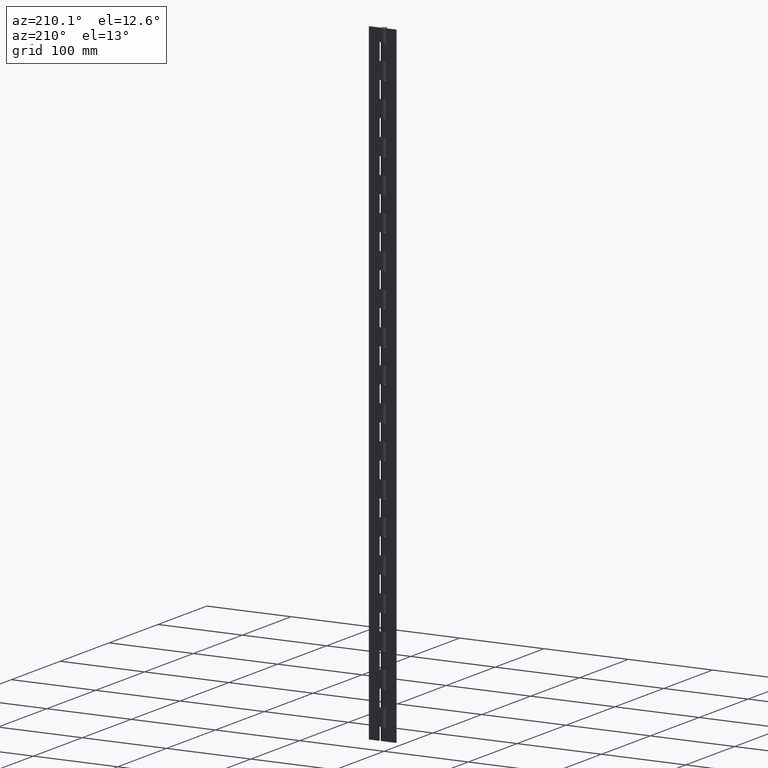
[diagram: clean part render]
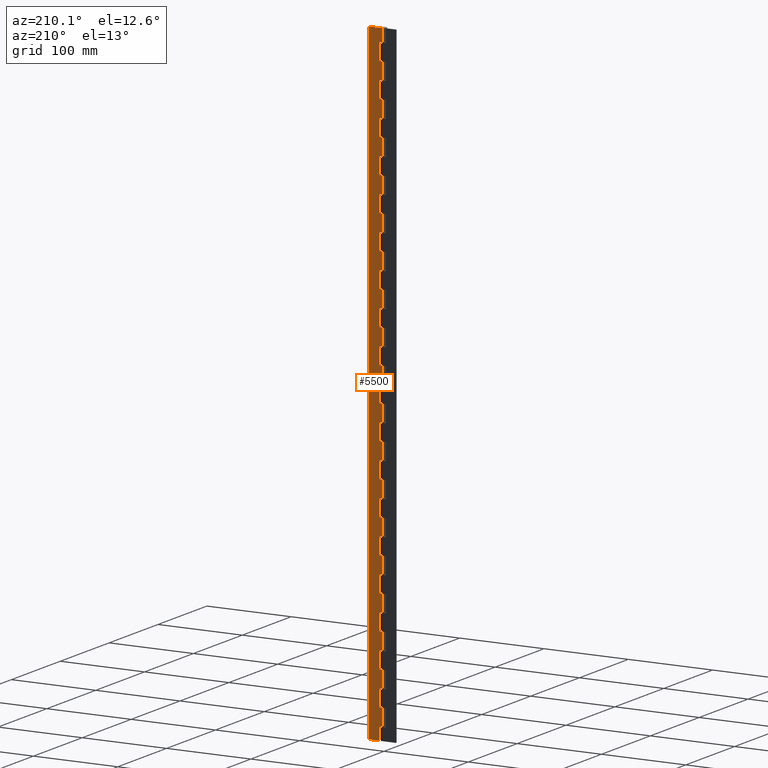
[diagram: same view with one face highlighted and labeled with its STEP entity id]
A machine part, auxiliary view. The second image highlights one B-rep face of the part: STEP entity #5500.
In plain terms, the highlighted face is a freeform B-spline surface patch.
Its self-contained STEP definition (entity closure, byte-faithful):
#302=CARTESIAN_POINT('',(4.0,3.249999999999865,15.000021999999850));
#303=VERTEX_POINT('',#302);
#309=CARTESIAN_POINT('',(4.0,3.249999999999885,0.0));
#310=VERTEX_POINT('',#309);
#311=CARTESIAN_POINT('',(4.0,3.249999999999885,0.0));
#312=CARTESIAN_POINT('',(4.0,3.249999999999865,15.000021999999850));
#313=QUASI_UNIFORM_CURVE('',1,(#311,#312),.UNSPECIFIED.,.F.,.U.);
#314=EDGE_CURVE('',#310,#303,#313,.T.);
#366=CARTESIAN_POINT('',(0.0,3.249999999999865,15.000021999999850));
#367=VERTEX_POINT('',#366);
#387=CARTESIAN_POINT('',(4.0,3.249999999999865,15.000021999999850));
#388=CARTESIAN_POINT('',(0.0,3.249999999999865,15.000021999999850));
#389=QUASI_UNIFORM_CURVE('',1,(#387,#388),.UNSPECIFIED.,.F.,.U.);
#390=EDGE_CURVE('',#303,#367,#389,.T.);
#408=CARTESIAN_POINT('',(4.0,3.249999999999865,55.000021999999802));
#409=VERTEX_POINT('',#408);
#415=CARTESIAN_POINT('',(4.0,3.249999999999865,35.000021999999952));
#416=VERTEX_POINT('',#415);
#417=CARTESIAN_POINT('',(4.0,3.249999999999865,35.000021999999952));
#418=CARTESIAN_POINT('',(4.0,3.249999999999865,55.000021999999802));
#419=QUASI_UNIFORM_CURVE('',1,(#417,#418),.UNSPECIFIED.,.F.,.U.);
#420=EDGE_CURVE('',#416,#409,#419,.T.);
#472=CARTESIAN_POINT('',(0.0,3.249999999999865,55.000021999999802));
#473=VERTEX_POINT('',#472);
#493=CARTESIAN_POINT('',(4.0,3.249999999999865,55.000021999999802));
#494=CARTESIAN_POINT('',(0.0,3.249999999999865,55.000021999999802));
#495=QUASI_UNIFORM_CURVE('',1,(#493,#494),.UNSPECIFIED.,.F.,.U.);
#496=EDGE_CURVE('',#409,#473,#495,.T.);
#513=CARTESIAN_POINT('',(0.0,3.249999999999865,35.000021999999952));
#514=VERTEX_POINT('',#513);
#515=CARTESIAN_POINT('',(0.0,3.249999999999865,35.000021999999952));
#516=CARTESIAN_POINT('',(4.0,3.249999999999865,35.000021999999952));
#517=QUASI_UNIFORM_CURVE('',1,(#515,#516),.UNSPECIFIED.,.F.,.U.);
#518=EDGE_CURVE('',#514,#416,#517,.T.);
#584=CARTESIAN_POINT('',(4.0,3.249999999999865,95.000021999999802));
#585=VERTEX_POINT('',#584);
#591=CARTESIAN_POINT('',(4.0,3.249999999999865,75.000022000000001));
#592=VERTEX_POINT('',#591);
#593=CARTESIAN_POINT('',(4.0,3.249999999999865,75.000022000000001));
#594=CARTESIAN_POINT('',(4.0,3.249999999999865,95.000021999999802));
#595=QUASI_UNIFORM_CURVE('',1,(#593,#594),.UNSPECIFIED.,.F.,.U.);
#596=EDGE_CURVE('',#592,#585,#595,.T.);
#648=CARTESIAN_POINT('',(0.0,3.249999999999865,95.000021999999802));
#649=VERTEX_POINT('',#648);
#669=CARTESIAN_POINT('',(4.0,3.249999999999865,95.000021999999802));
#670=CARTESIAN_POINT('',(0.0,3.249999999999865,95.000021999999802));
#671=QUASI_UNIFORM_CURVE('',1,(#669,#670),.UNSPECIFIED.,.F.,.U.);
#672=EDGE_CURVE('',#585,#649,#671,.T.);
#689=CARTESIAN_POINT('',(0.0,3.249999999999865,75.000022000000001));
#690=VERTEX_POINT('',#689);
#691=CARTESIAN_POINT('',(0.0,3.249999999999865,75.000022000000001));
#692=CARTESIAN_POINT('',(4.0,3.249999999999865,75.000022000000001));
#693=QUASI_UNIFORM_CURVE('',1,(#691,#692),.UNSPECIFIED.,.F.,.U.);
#694=EDGE_CURVE('',#690,#592,#693,.T.);
#760=CARTESIAN_POINT('',(4.0,3.249999999999865,135.000021999999800));
#761=VERTEX_POINT('',#760);
#767=CARTESIAN_POINT('',(4.0,3.249999999999865,115.000022000000000));
#768=VERTEX_POINT('',#767);
#769=CARTESIAN_POINT('',(4.0,3.249999999999865,115.000022000000000));
#770=CARTESIAN_POINT('',(4.0,3.249999999999865,135.000021999999800));
#771=QUASI_UNIFORM_CURVE('',1,(#769,#770),.UNSPECIFIED.,.F.,.U.);
#772=EDGE_CURVE('',#768,#761,#771,.T.);
#824=CARTESIAN_POINT('',(0.0,3.249999999999865,135.000021999999800));
#825=VERTEX_POINT('',#824);
#845=CARTESIAN_POINT('',(4.0,3.249999999999865,135.000021999999800));
#846=CARTESIAN_POINT('',(0.0,3.249999999999865,135.000021999999800));
#847=QUASI_UNIFORM_CURVE('',1,(#845,#846),.UNSPECIFIED.,.F.,.U.);
#848=EDGE_CURVE('',#761,#825,#847,.T.);
#865=CARTESIAN_POINT('',(0.0,3.249999999999865,115.000022000000000));
#866=VERTEX_POINT('',#865);
#867=CARTESIAN_POINT('',(0.0,3.249999999999865,115.000022000000000));
#868=CARTESIAN_POINT('',(4.0,3.249999999999865,115.000022000000000));
#869=QUASI_UNIFORM_CURVE('',1,(#867,#868),.UNSPECIFIED.,.F.,.U.);
#870=EDGE_CURVE('',#866,#768,#869,.T.);
#936=CARTESIAN_POINT('',(4.0,3.249999999999865,175.000022000000000));
#937=VERTEX_POINT('',#936);
#943=CARTESIAN_POINT('',(4.0,3.249999999999865,155.000022000000000));
#944=VERTEX_POINT('',#943);
#945=CARTESIAN_POINT('',(4.0,3.249999999999865,155.000022000000000));
#946=CARTESIAN_POINT('',(4.0,3.249999999999865,175.000022000000000));
#947=QUASI_UNIFORM_CURVE('',1,(#945,#946),.UNSPECIFIED.,.F.,.U.);
#948=EDGE_CURVE('',#944,#937,#947,.T.);
#1000=CARTESIAN_POINT('',(0.0,3.249999999999865,175.000022000000000));
#1001=VERTEX_POINT('',#1000);
#1021=CARTESIAN_POINT('',(4.0,3.249999999999865,175.000022000000000));
#1022=CARTESIAN_POINT('',(0.0,3.249999999999865,175.000022000000000));
#1023=QUASI_UNIFORM_CURVE('',1,(#1021,#1022),.UNSPECIFIED.,.F.,.U.);
#1024=EDGE_CURVE('',#937,#1001,#1023,.T.);
#1041=CARTESIAN_POINT('',(0.0,3.249999999999865,155.000022000000000));
#1042=VERTEX_POINT('',#1041);
#1043=CARTESIAN_POINT('',(0.0,3.249999999999865,155.000022000000000));
#1044=CARTESIAN_POINT('',(4.0,3.249999999999865,155.000022000000000));
#1045=QUASI_UNIFORM_CURVE('',1,(#1043,#1044),.UNSPECIFIED.,.F.,.U.);
#1046=EDGE_CURVE('',#1042,#944,#1045,.T.);
#1112=CARTESIAN_POINT('',(4.0,3.249999999999865,215.000022000000000));
#1113=VERTEX_POINT('',#1112);
#1119=CARTESIAN_POINT('',(4.0,3.249999999999865,195.000022000000000));
#1120=VERTEX_POINT('',#1119);
#1121=CARTESIAN_POINT('',(4.0,3.249999999999865,195.000022000000000));
#1122=CARTESIAN_POINT('',(4.0,3.249999999999865,215.000022000000000));
#1123=QUASI_UNIFORM_CURVE('',1,(#1121,#1122),.UNSPECIFIED.,.F.,.U.);
#1124=EDGE_CURVE('',#1120,#1113,#1123,.T.);
#1176=CARTESIAN_POINT('',(0.0,3.249999999999865,215.000022000000000));
#1177=VERTEX_POINT('',#1176);
#1197=CARTESIAN_POINT('',(4.0,3.249999999999865,215.000022000000000));
#1198=CARTESIAN_POINT('',(0.0,3.249999999999865,215.000022000000000));
#1199=QUASI_UNIFORM_CURVE('',1,(#1197,#1198),.UNSPECIFIED.,.F.,.U.);
#1200=EDGE_CURVE('',#1113,#1177,#1199,.T.);
#1217=CARTESIAN_POINT('',(0.0,3.249999999999865,195.000022000000000));
#1218=VERTEX_POINT('',#1217);
#1219=CARTESIAN_POINT('',(0.0,3.249999999999865,195.000022000000000));
#1220=CARTESIAN_POINT('',(4.0,3.249999999999865,195.000022000000000));
#1221=QUASI_UNIFORM_CURVE('',1,(#1219,#1220),.UNSPECIFIED.,.F.,.U.);
#1222=EDGE_CURVE('',#1218,#1120,#1221,.T.);
#1288=CARTESIAN_POINT('',(4.0,3.249999999999865,255.000022000000000));
#1289=VERTEX_POINT('',#1288);
#1295=CARTESIAN_POINT('',(4.0,3.249999999999865,235.000022000000000));
#1296=VERTEX_POINT('',#1295);
#1297=CARTESIAN_POINT('',(4.0,3.249999999999865,235.000022000000000));
#1298=CARTESIAN_POINT('',(4.0,3.249999999999865,255.000022000000000));
#1299=QUASI_UNIFORM_CURVE('',1,(#1297,#1298),.UNSPECIFIED.,.F.,.U.);
#1300=EDGE_CURVE('',#1296,#1289,#1299,.T.);
#1352=CARTESIAN_POINT('',(0.0,3.249999999999865,255.000022000000000));
#1353=VERTEX_POINT('',#1352);
#1373=CARTESIAN_POINT('',(4.0,3.249999999999865,255.000022000000000));
#1374=CARTESIAN_POINT('',(0.0,3.249999999999865,255.000022000000000));
#1375=QUASI_UNIFORM_CURVE('',1,(#1373,#1374),.UNSPECIFIED.,.F.,.U.);
#1376=EDGE_CURVE('',#1289,#1353,#1375,.T.);
#1393=CARTESIAN_POINT('',(0.0,3.249999999999865,235.000022000000000));
#1394=VERTEX_POINT('',#1393);
#1395=CARTESIAN_POINT('',(0.0,3.249999999999865,235.000022000000000));
#1396=CARTESIAN_POINT('',(4.0,3.249999999999865,235.000022000000000));
#1397=QUASI_UNIFORM_CURVE('',1,(#1395,#1396),.UNSPECIFIED.,.F.,.U.);
#1398=EDGE_CURVE('',#1394,#1296,#1397,.T.);
#1464=CARTESIAN_POINT('',(4.0,3.249999999999865,295.000021999999890));
#1465=VERTEX_POINT('',#1464);
#1471=CARTESIAN_POINT('',(4.0,3.249999999999865,275.000022000000000));
#1472=VERTEX_POINT('',#1471);
#1473=CARTESIAN_POINT('',(4.0,3.249999999999865,275.000022000000000));
#1474=CARTESIAN_POINT('',(4.0,3.249999999999865,295.000021999999890));
#1475=QUASI_UNIFORM_CURVE('',1,(#1473,#1474),.UNSPECIFIED.,.F.,.U.);
#1476=EDGE_CURVE('',#1472,#1465,#1475,.T.);
#1528=CARTESIAN_POINT('',(0.0,3.249999999999865,295.000021999999890));
#1529=VERTEX_POINT('',#1528);
#1549=CARTESIAN_POINT('',(4.0,3.249999999999865,295.000021999999890));
#1550=CARTESIAN_POINT('',(0.0,3.249999999999865,295.000021999999890));
#1551=QUASI_UNIFORM_CURVE('',1,(#1549,#1550),.UNSPECIFIED.,.F.,.U.);
#1552=EDGE_CURVE('',#1465,#1529,#1551,.T.);
#1569=CARTESIAN_POINT('',(0.0,3.249999999999865,275.000022000000000));
#1570=VERTEX_POINT('',#1569);
#1571=CARTESIAN_POINT('',(0.0,3.249999999999865,275.000022000000000));
#1572=CARTESIAN_POINT('',(4.0,3.249999999999865,275.000022000000000));
#1573=QUASI_UNIFORM_CURVE('',1,(#1571,#1572),.UNSPECIFIED.,.F.,.U.);
#1574=EDGE_CURVE('',#1570,#1472,#1573,.T.);
#1640=CARTESIAN_POINT('',(4.0,3.249999999999865,335.000022000000000));
#1641=VERTEX_POINT('',#1640);
#1647=CARTESIAN_POINT('',(4.0,3.249999999999865,315.000022000000000));
#1648=VERTEX_POINT('',#1647);
#1649=CARTESIAN_POINT('',(4.0,3.249999999999865,315.000022000000000));
#1650=CARTESIAN_POINT('',(4.0,3.249999999999865,335.000022000000000));
#1651=QUASI_UNIFORM_CURVE('',1,(#1649,#1650),.UNSPECIFIED.,.F.,.U.);
#1652=EDGE_CURVE('',#1648,#1641,#1651,.T.);
#1704=CARTESIAN_POINT('',(0.0,3.249999999999865,335.000022000000000));
#1705=VERTEX_POINT('',#1704);
#1725=CARTESIAN_POINT('',(4.0,3.249999999999865,335.000022000000000));
#1726=CARTESIAN_POINT('',(0.0,3.249999999999865,335.000022000000000));
#1727=QUASI_UNIFORM_CURVE('',1,(#1725,#1726),.UNSPECIFIED.,.F.,.U.);
#1728=EDGE_CURVE('',#1641,#1705,#1727,.T.);
#1745=CARTESIAN_POINT('',(0.0,3.249999999999865,315.000022000000000));
#1746=VERTEX_POINT('',#1745);
#1747=CARTESIAN_POINT('',(0.0,3.249999999999865,315.000022000000000));
#1748=CARTESIAN_POINT('',(4.0,3.249999999999865,315.000022000000000));
#1749=QUASI_UNIFORM_CURVE('',1,(#1747,#1748),.UNSPECIFIED.,.F.,.U.);
#1750=EDGE_CURVE('',#1746,#1648,#1749,.T.);
#1816=CARTESIAN_POINT('',(4.0,3.249999999999865,375.000022000000000));
#1817=VERTEX_POINT('',#1816);
#1823=CARTESIAN_POINT('',(4.0,3.249999999999865,355.000022000000000));
#1824=VERTEX_POINT('',#1823);
#1825=CARTESIAN_POINT('',(4.0,3.249999999999865,355.000022000000000));
#1826=CARTESIAN_POINT('',(4.0,3.249999999999865,375.000022000000000));
#1827=QUASI_UNIFORM_CURVE('',1,(#1825,#1826),.UNSPECIFIED.,.F.,.U.);
#1828=EDGE_CURVE('',#1824,#1817,#1827,.T.);
#1880=CARTESIAN_POINT('',(0.0,3.249999999999865,375.000022000000000));
#1881=VERTEX_POINT('',#1880);
#1901=CARTESIAN_POINT('',(4.0,3.249999999999865,375.000022000000000));
#1902=CARTESIAN_POINT('',(0.0,3.249999999999865,375.000022000000000));
#1903=QUASI_UNIFORM_CURVE('',1,(#1901,#1902),.UNSPECIFIED.,.F.,.U.);
#1904=EDGE_CURVE('',#1817,#1881,#1903,.T.);
#1921=CARTESIAN_POINT('',(0.0,3.249999999999865,355.000022000000000));
#1922=VERTEX_POINT('',#1921);
#1923=CARTESIAN_POINT('',(0.0,3.249999999999865,355.000022000000000));
#1924=CARTESIAN_POINT('',(4.0,3.249999999999865,355.000022000000000));
#1925=QUASI_UNIFORM_CURVE('',1,(#1923,#1924),.UNSPECIFIED.,.F.,.U.);
#1926=EDGE_CURVE('',#1922,#1824,#1925,.T.);
#1992=CARTESIAN_POINT('',(4.0,3.249999999999865,415.000022000000000));
#1993=VERTEX_POINT('',#1992);
#1999=CARTESIAN_POINT('',(4.0,3.249999999999865,395.000022000000000));
#2000=VERTEX_POINT('',#1999);
#2001=CARTESIAN_POINT('',(4.0,3.249999999999865,395.000022000000000));
#2002=CARTESIAN_POINT('',(4.0,3.249999999999865,415.000022000000000));
#2003=QUASI_UNIFORM_CURVE('',1,(#2001,#2002),.UNSPECIFIED.,.F.,.U.);
#2004=EDGE_CURVE('',#2000,#1993,#2003,.T.);
#2056=CARTESIAN_POINT('',(0.0,3.249999999999865,415.000022000000000));
#2057=VERTEX_POINT('',#2056);
#2077=CARTESIAN_POINT('',(4.0,3.249999999999865,415.000022000000000));
#2078=CARTESIAN_POINT('',(0.0,3.249999999999865,415.000022000000000));
#2079=QUASI_UNIFORM_CURVE('',1,(#2077,#2078),.UNSPECIFIED.,.F.,.U.);
#2080=EDGE_CURVE('',#1993,#2057,#2079,.T.);
#2097=CARTESIAN_POINT('',(0.0,3.249999999999865,395.000022000000000));
#2098=VERTEX_POINT('',#2097);
#2099=CARTESIAN_POINT('',(0.0,3.249999999999865,395.000022000000000));
#2100=CARTESIAN_POINT('',(4.0,3.249999999999865,395.000022000000000));
#2101=QUASI_UNIFORM_CURVE('',1,(#2099,#2100),.UNSPECIFIED.,.F.,.U.);
#2102=EDGE_CURVE('',#2098,#2000,#2101,.T.);
#2168=CARTESIAN_POINT('',(4.0,3.249999999999865,455.000022000000000));
#2169=VERTEX_POINT('',#2168);
#2175=CARTESIAN_POINT('',(4.0,3.249999999999865,435.000022000000000));
#2176=VERTEX_POINT('',#2175);
#2177=CARTESIAN_POINT('',(4.0,3.249999999999865,435.000022000000000));
#2178=CARTESIAN_POINT('',(4.0,3.249999999999865,455.000022000000000));
#2179=QUASI_UNIFORM_CURVE('',1,(#2177,#2178),.UNSPECIFIED.,.F.,.U.);
#2180=EDGE_CURVE('',#2176,#2169,#2179,.T.);
#2232=CARTESIAN_POINT('',(0.0,3.249999999999865,455.000022000000000));
#2233=VERTEX_POINT('',#2232);
#2253=CARTESIAN_POINT('',(4.0,3.249999999999865,455.000022000000000));
#2254=CARTESIAN_POINT('',(0.0,3.249999999999865,455.000022000000000));
#2255=QUASI_UNIFORM_CURVE('',1,(#2253,#2254),.UNSPECIFIED.,.F.,.U.);
#2256=EDGE_CURVE('',#2169,#2233,#2255,.T.);
#2273=CARTESIAN_POINT('',(0.0,3.249999999999865,435.000022000000000));
#2274=VERTEX_POINT('',#2273);
#2275=CARTESIAN_POINT('',(0.0,3.249999999999865,435.000022000000000));
#2276=CARTESIAN_POINT('',(4.0,3.249999999999865,435.000022000000000));
#2277=QUASI_UNIFORM_CURVE('',1,(#2275,#2276),.UNSPECIFIED.,.F.,.U.);
#2278=EDGE_CURVE('',#2274,#2176,#2277,.T.);
#2344=CARTESIAN_POINT('',(4.0,3.249999999999865,495.000022000000000));
#2345=VERTEX_POINT('',#2344);
#2351=CARTESIAN_POINT('',(4.0,3.249999999999865,475.000022000000000));
#2352=VERTEX_POINT('',#2351);
#2353=CARTESIAN_POINT('',(4.0,3.249999999999865,475.000022000000000));
#2354=CARTESIAN_POINT('',(4.0,3.249999999999865,495.000022000000000));
#2355=QUASI_UNIFORM_CURVE('',1,(#2353,#2354),.UNSPECIFIED.,.F.,.U.);
#2356=EDGE_CURVE('',#2352,#2345,#2355,.T.);
#2408=CARTESIAN_POINT('',(0.0,3.249999999999865,495.000022000000000));
#2409=VERTEX_POINT('',#2408);
#2429=CARTESIAN_POINT('',(4.0,3.249999999999865,495.000022000000000));
#2430=CARTESIAN_POINT('',(0.0,3.249999999999865,495.000022000000000));
#2431=QUASI_UNIFORM_CURVE('',1,(#2429,#2430),.UNSPECIFIED.,.F.,.U.);
#2432=EDGE_CURVE('',#2345,#2409,#2431,.T.);
#2449=CARTESIAN_POINT('',(0.0,3.249999999999865,475.000022000000000));
#2450=VERTEX_POINT('',#2449);
#2451=CARTESIAN_POINT('',(0.0,3.249999999999865,475.000022000000000));
#2452=CARTESIAN_POINT('',(4.0,3.249999999999865,475.000022000000000));
#2453=QUASI_UNIFORM_CURVE('',1,(#2451,#2452),.UNSPECIFIED.,.F.,.U.);
#2454=EDGE_CURVE('',#2450,#2352,#2453,.T.);
#2520=CARTESIAN_POINT('',(4.0,3.249999999999865,535.000021999999940));
#2521=VERTEX_POINT('',#2520);
#2527=CARTESIAN_POINT('',(4.0,3.249999999999865,515.000021999999940));
#2528=VERTEX_POINT('',#2527);
#2529=CARTESIAN_POINT('',(4.0,3.249999999999865,515.000021999999940));
#2530=CARTESIAN_POINT('',(4.0,3.249999999999865,535.000021999999940));
#2531=QUASI_UNIFORM_CURVE('',1,(#2529,#2530),.UNSPECIFIED.,.F.,.U.);
#2532=EDGE_CURVE('',#2528,#2521,#2531,.T.);
#2584=CARTESIAN_POINT('',(0.0,3.249999999999865,535.000021999999940));
#2585=VERTEX_POINT('',#2584);
#2605=CARTESIAN_POINT('',(4.0,3.249999999999865,535.000021999999940));
#2606=CARTESIAN_POINT('',(0.0,3.249999999999865,535.000021999999940));
#2607=QUASI_UNIFORM_CURVE('',1,(#2605,#2606),.UNSPECIFIED.,.F.,.U.);
#2608=EDGE_CURVE('',#2521,#2585,#2607,.T.);
#2625=CARTESIAN_POINT('',(0.0,3.249999999999865,515.000021999999940));
#2626=VERTEX_POINT('',#2625);
#2627=CARTESIAN_POINT('',(0.0,3.249999999999865,515.000021999999940));
#2628=CARTESIAN_POINT('',(4.0,3.249999999999865,515.000021999999940));
#2629=QUASI_UNIFORM_CURVE('',1,(#2627,#2628),.UNSPECIFIED.,.F.,.U.);
#2630=EDGE_CURVE('',#2626,#2528,#2629,.T.);
#2696=CARTESIAN_POINT('',(4.0,3.249999999999865,575.000021999999940));
#2697=VERTEX_POINT('',#2696);
#2703=CARTESIAN_POINT('',(4.0,3.249999999999865,555.000021999999940));
#2704=VERTEX_POINT('',#2703);
#2705=CARTESIAN_POINT('',(4.0,3.249999999999865,555.000021999999940));
#2706=CARTESIAN_POINT('',(4.0,3.249999999999865,575.000021999999940));
#2707=QUASI_UNIFORM_CURVE('',1,(#2705,#2706),.UNSPECIFIED.,.F.,.U.);
#2708=EDGE_CURVE('',#2704,#2697,#2707,.T.);
#2760=CARTESIAN_POINT('',(0.0,3.249999999999865,575.000021999999940));
#2761=VERTEX_POINT('',#2760);
#2781=CARTESIAN_POINT('',(4.0,3.249999999999865,575.000021999999940));
#2782=CARTESIAN_POINT('',(0.0,3.249999999999865,575.000021999999940));
#2783=QUASI_UNIFORM_CURVE('',1,(#2781,#2782),.UNSPECIFIED.,.F.,.U.);
#2784=EDGE_CURVE('',#2697,#2761,#2783,.T.);
#2801=CARTESIAN_POINT('',(0.0,3.249999999999865,555.000021999999940));
#2802=VERTEX_POINT('',#2801);
#2803=CARTESIAN_POINT('',(0.0,3.249999999999865,555.000021999999940));
#2804=CARTESIAN_POINT('',(4.0,3.249999999999865,555.000021999999940));
#2805=QUASI_UNIFORM_CURVE('',1,(#2803,#2804),.UNSPECIFIED.,.F.,.U.);
#2806=EDGE_CURVE('',#2802,#2704,#2805,.T.);
#2872=CARTESIAN_POINT('',(4.0,3.249999999999865,615.000022000000060));
#2873=VERTEX_POINT('',#2872);
#2879=CARTESIAN_POINT('',(4.0,3.249999999999865,595.000022000000060));
#2880=VERTEX_POINT('',#2879);
#2881=CARTESIAN_POINT('',(4.0,3.249999999999865,595.000022000000060));
#2882=CARTESIAN_POINT('',(4.0,3.249999999999865,615.000022000000060));
#2883=QUASI_UNIFORM_CURVE('',1,(#2881,#2882),.UNSPECIFIED.,.F.,.U.);
#2884=EDGE_CURVE('',#2880,#2873,#2883,.T.);
#2936=CARTESIAN_POINT('',(0.0,3.249999999999865,615.000022000000060));
#2937=VERTEX_POINT('',#2936);
#2957=CARTESIAN_POINT('',(4.0,3.249999999999865,615.000022000000060));
#2958=CARTESIAN_POINT('',(0.0,3.249999999999865,615.000022000000060));
#2959=QUASI_UNIFORM_CURVE('',1,(#2957,#2958),.UNSPECIFIED.,.F.,.U.);
#2960=EDGE_CURVE('',#2873,#2937,#2959,.T.);
#2977=CARTESIAN_POINT('',(0.0,3.249999999999865,595.000022000000060));
#2978=VERTEX_POINT('',#2977);
#2979=CARTESIAN_POINT('',(0.0,3.249999999999865,595.000022000000060));
#2980=CARTESIAN_POINT('',(4.0,3.249999999999865,595.000022000000060));
#2981=QUASI_UNIFORM_CURVE('',1,(#2979,#2980),.UNSPECIFIED.,.F.,.U.);
#2982=EDGE_CURVE('',#2978,#2880,#2981,.T.);
#3048=CARTESIAN_POINT('',(4.0,3.249999999999865,655.000021999999940));
#3049=VERTEX_POINT('',#3048);
#3055=CARTESIAN_POINT('',(4.0,3.249999999999865,635.000022000000060));
#3056=VERTEX_POINT('',#3055);
#3057=CARTESIAN_POINT('',(4.0,3.249999999999865,635.000022000000060));
#3058=CARTESIAN_POINT('',(4.0,3.249999999999865,655.000021999999940));
#3059=QUASI_UNIFORM_CURVE('',1,(#3057,#3058),.UNSPECIFIED.,.F.,.U.);
#3060=EDGE_CURVE('',#3056,#3049,#3059,.T.);
#3112=CARTESIAN_POINT('',(0.0,3.249999999999865,655.000021999999940));
#3113=VERTEX_POINT('',#3112);
#3133=CARTESIAN_POINT('',(4.0,3.249999999999865,655.000021999999940));
#3134=CARTESIAN_POINT('',(0.0,3.249999999999865,655.000021999999940));
#3135=QUASI_UNIFORM_CURVE('',1,(#3133,#3134),.UNSPECIFIED.,.F.,.U.);
#3136=EDGE_CURVE('',#3049,#3113,#3135,.T.);
#3153=CARTESIAN_POINT('',(0.0,3.249999999999865,635.000022000000060));
#3154=VERTEX_POINT('',#3153);
#3155=CARTESIAN_POINT('',(0.0,3.249999999999865,635.000022000000060));
#3156=CARTESIAN_POINT('',(4.0,3.249999999999865,635.000022000000060));
#3157=QUASI_UNIFORM_CURVE('',1,(#3155,#3156),.UNSPECIFIED.,.F.,.U.);
#3158=EDGE_CURVE('',#3154,#3056,#3157,.T.);
#3224=CARTESIAN_POINT('',(4.0,3.249999999999865,695.000021999999940));
#3225=VERTEX_POINT('',#3224);
#3231=CARTESIAN_POINT('',(4.0,3.249999999999865,675.000021999999940));
#3232=VERTEX_POINT('',#3231);
#3233=CARTESIAN_POINT('',(4.0,3.249999999999865,675.000021999999940));
#3234=CARTESIAN_POINT('',(4.0,3.249999999999865,695.000021999999940));
#3235=QUASI_UNIFORM_CURVE('',1,(#3233,#3234),.UNSPECIFIED.,.F.,.U.);
#3236=EDGE_CURVE('',#3232,#3225,#3235,.T.);
#3288=CARTESIAN_POINT('',(0.0,3.249999999999865,695.000021999999940));
#3289=VERTEX_POINT('',#3288);
#3309=CARTESIAN_POINT('',(4.0,3.249999999999865,695.000021999999940));
#3310=CARTESIAN_POINT('',(0.0,3.249999999999865,695.000021999999940));
#3311=QUASI_UNIFORM_CURVE('',1,(#3309,#3310),.UNSPECIFIED.,.F.,.U.);
#3312=EDGE_CURVE('',#3225,#3289,#3311,.T.);
#3329=CARTESIAN_POINT('',(0.0,3.249999999999865,675.000021999999940));
#3330=VERTEX_POINT('',#3329);
#3331=CARTESIAN_POINT('',(0.0,3.249999999999865,675.000021999999940));
#3332=CARTESIAN_POINT('',(4.0,3.249999999999865,675.000021999999940));
#3333=QUASI_UNIFORM_CURVE('',1,(#3331,#3332),.UNSPECIFIED.,.F.,.U.);
#3334=EDGE_CURVE('',#3330,#3232,#3333,.T.);
#3400=CARTESIAN_POINT('',(4.0,3.249999999999865,735.000022000000060));
#3401=VERTEX_POINT('',#3400);
#3407=CARTESIAN_POINT('',(4.0,3.249999999999865,715.000022000000060));
#3408=VERTEX_POINT('',#3407);
#3409=CARTESIAN_POINT('',(4.0,3.249999999999865,715.000022000000060));
#3410=CARTESIAN_POINT('',(4.0,3.249999999999865,735.000022000000060));
#3411=QUASI_UNIFORM_CURVE('',1,(#3409,#3410),.UNSPECIFIED.,.F.,.U.);
#3412=EDGE_CURVE('',#3408,#3401,#3411,.T.);
#3464=CARTESIAN_POINT('',(0.0,3.249999999999865,735.000022000000060));
#3465=VERTEX_POINT('',#3464);
#3485=CARTESIAN_POINT('',(4.0,3.249999999999865,735.000022000000060));
#3486=CARTESIAN_POINT('',(0.0,3.249999999999865,735.000022000000060));
#3487=QUASI_UNIFORM_CURVE('',1,(#3485,#3486),.UNSPECIFIED.,.F.,.U.);
#3488=EDGE_CURVE('',#3401,#3465,#3487,.T.);
#3505=CARTESIAN_POINT('',(0.0,3.249999999999865,715.000022000000060));
#3506=VERTEX_POINT('',#3505);
#3507=CARTESIAN_POINT('',(0.0,3.249999999999865,715.000022000000060));
#3508=CARTESIAN_POINT('',(4.0,3.249999999999865,715.000022000000060));
#3509=QUASI_UNIFORM_CURVE('',1,(#3507,#3508),.UNSPECIFIED.,.F.,.U.);
#3510=EDGE_CURVE('',#3506,#3408,#3509,.T.);
#3574=CARTESIAN_POINT('',(-5.969956E-016,3.250000000000000,750.000022000000060));
#3575=VERTEX_POINT('',#3574);
#3576=CARTESIAN_POINT('',(16.0,3.249999999999885,750.000022000000060));
#3577=VERTEX_POINT('',#3576);
#3578=CARTESIAN_POINT('',(-5.969956E-016,3.250000000000000,750.000022000000060));
#3579=CARTESIAN_POINT('',(16.0,3.249999999999885,750.000022000000060));
#3580=QUASI_UNIFORM_CURVE('',1,(#3578,#3579),.UNSPECIFIED.,.F.,.U.);
#3581=EDGE_CURVE('',#3575,#3577,#3580,.T.);
#3652=CARTESIAN_POINT('',(16.0,3.249999999999885,0.0));
#3653=VERTEX_POINT('',#3652);
#3661=CARTESIAN_POINT('',(16.0,3.249999999999885,750.000022000000060));
#3662=CARTESIAN_POINT('',(16.0,3.249999999999885,0.0));
#3663=QUASI_UNIFORM_CURVE('',1,(#3661,#3662),.UNSPECIFIED.,.F.,.U.);
#3664=EDGE_CURVE('',#3577,#3653,#3663,.T.);
#3704=CARTESIAN_POINT('',(-5.969956E-016,3.250000000000000,750.000022000000060));
#3705=CARTESIAN_POINT('',(0.0,3.249999999999865,735.000022000000060));
#3706=QUASI_UNIFORM_CURVE('',1,(#3704,#3705),.UNSPECIFIED.,.F.,.U.);
#3707=EDGE_CURVE('',#3575,#3465,#3706,.T.);
#3790=CARTESIAN_POINT('',(0.0,3.249999999999865,715.000022000000060));
#3791=CARTESIAN_POINT('',(0.0,3.249999999999865,695.000021999999940));
#3792=QUASI_UNIFORM_CURVE('',1,(#3790,#3791),.UNSPECIFIED.,.F.,.U.);
#3793=EDGE_CURVE('',#3506,#3289,#3792,.T.);
#3876=CARTESIAN_POINT('',(0.0,3.249999999999865,675.000021999999940));
#3877=CARTESIAN_POINT('',(0.0,3.249999999999865,655.000021999999940));
#3878=QUASI_UNIFORM_CURVE('',1,(#3876,#3877),.UNSPECIFIED.,.F.,.U.);
#3879=EDGE_CURVE('',#3330,#3113,#3878,.T.);
#3962=CARTESIAN_POINT('',(0.0,3.249999999999865,635.000022000000060));
#3963=CARTESIAN_POINT('',(0.0,3.249999999999865,615.000022000000060));
#3964=QUASI_UNIFORM_CURVE('',1,(#3962,#3963),.UNSPECIFIED.,.F.,.U.);
#3965=EDGE_CURVE('',#3154,#2937,#3964,.T.);
#4048=CARTESIAN_POINT('',(0.0,3.249999999999865,595.000022000000060));
#4049=CARTESIAN_POINT('',(0.0,3.249999999999865,575.000021999999940));
#4050=QUASI_UNIFORM_CURVE('',1,(#4048,#4049),.UNSPECIFIED.,.F.,.U.);
#4051=EDGE_CURVE('',#2978,#2761,#4050,.T.);
#4134=CARTESIAN_POINT('',(0.0,3.249999999999865,555.000021999999940));
#4135=CARTESIAN_POINT('',(0.0,3.249999999999865,535.000021999999940));
#4136=QUASI_UNIFORM_CURVE('',1,(#4134,#4135),.UNSPECIFIED.,.F.,.U.);
#4137=EDGE_CURVE('',#2802,#2585,#4136,.T.);
#4220=CARTESIAN_POINT('',(0.0,3.249999999999865,515.000021999999940));
#4221=CARTESIAN_POINT('',(0.0,3.249999999999865,495.000022000000000));
#4222=QUASI_UNIFORM_CURVE('',1,(#4220,#4221),.UNSPECIFIED.,.F.,.U.);
#4223=EDGE_CURVE('',#2626,#2409,#4222,.T.);
#4306=CARTESIAN_POINT('',(0.0,3.249999999999865,475.000022000000000));
#4307=CARTESIAN_POINT('',(0.0,3.249999999999865,455.000022000000000));
#4308=QUASI_UNIFORM_CURVE('',1,(#4306,#4307),.UNSPECIFIED.,.F.,.U.);
#4309=EDGE_CURVE('',#2450,#2233,#4308,.T.);
#4392=CARTESIAN_POINT('',(0.0,3.249999999999865,435.000022000000000));
#4393=CARTESIAN_POINT('',(0.0,3.249999999999865,415.000022000000000));
#4394=QUASI_UNIFORM_CURVE('',1,(#4392,#4393),.UNSPECIFIED.,.F.,.U.);
#4395=EDGE_CURVE('',#2274,#2057,#4394,.T.);
#4478=CARTESIAN_POINT('',(0.0,3.249999999999865,395.000022000000000));
#4479=CARTESIAN_POINT('',(0.0,3.249999999999865,375.000022000000000));
#4480=QUASI_UNIFORM_CURVE('',1,(#4478,#4479),.UNSPECIFIED.,.F.,.U.);
#4481=EDGE_CURVE('',#2098,#1881,#4480,.T.);
#4564=CARTESIAN_POINT('',(0.0,3.249999999999865,355.000022000000000));
#4565=CARTESIAN_POINT('',(0.0,3.249999999999865,335.000022000000000));
#4566=QUASI_UNIFORM_CURVE('',1,(#4564,#4565),.UNSPECIFIED.,.F.,.U.);
#4567=EDGE_CURVE('',#1922,#1705,#4566,.T.);
#4650=CARTESIAN_POINT('',(0.0,3.249999999999865,315.000022000000000));
#4651=CARTESIAN_POINT('',(0.0,3.249999999999865,295.000021999999890));
#4652=QUASI_UNIFORM_CURVE('',1,(#4650,#4651),.UNSPECIFIED.,.F.,.U.);
#4653=EDGE_CURVE('',#1746,#1529,#4652,.T.);
#4736=CARTESIAN_POINT('',(0.0,3.249999999999865,275.000022000000000));
#4737=CARTESIAN_POINT('',(0.0,3.249999999999865,255.000022000000000));
#4738=QUASI_UNIFORM_CURVE('',1,(#4736,#4737),.UNSPECIFIED.,.F.,.U.);
#4739=EDGE_CURVE('',#1570,#1353,#4738,.T.);
#4822=CARTESIAN_POINT('',(0.0,3.249999999999865,235.000022000000000));
#4823=CARTESIAN_POINT('',(0.0,3.249999999999865,215.000022000000000));
#4824=QUASI_UNIFORM_CURVE('',1,(#4822,#4823),.UNSPECIFIED.,.F.,.U.);
#4825=EDGE_CURVE('',#1394,#1177,#4824,.T.);
#4908=CARTESIAN_POINT('',(0.0,3.249999999999865,195.000022000000000));
#4909=CARTESIAN_POINT('',(0.0,3.249999999999865,175.000022000000000));
#4910=QUASI_UNIFORM_CURVE('',1,(#4908,#4909),.UNSPECIFIED.,.F.,.U.);
#4911=EDGE_CURVE('',#1218,#1001,#4910,.T.);
#4994=CARTESIAN_POINT('',(0.0,3.249999999999865,155.000022000000000));
#4995=CARTESIAN_POINT('',(0.0,3.249999999999865,135.000021999999800));
#4996=QUASI_UNIFORM_CURVE('',1,(#4994,#4995),.UNSPECIFIED.,.F.,.U.);
#4997=EDGE_CURVE('',#1042,#825,#4996,.T.);
#5080=CARTESIAN_POINT('',(0.0,3.249999999999865,115.000022000000000));
#5081=CARTESIAN_POINT('',(0.0,3.249999999999865,95.000021999999802));
#5082=QUASI_UNIFORM_CURVE('',1,(#5080,#5081),.UNSPECIFIED.,.F.,.U.);
#5083=EDGE_CURVE('',#866,#649,#5082,.T.);
#5166=CARTESIAN_POINT('',(0.0,3.249999999999865,75.000022000000001));
#5167=CARTESIAN_POINT('',(0.0,3.249999999999865,55.000021999999802));
#5168=QUASI_UNIFORM_CURVE('',1,(#5166,#5167),.UNSPECIFIED.,.F.,.U.);
#5169=EDGE_CURVE('',#690,#473,#5168,.T.);
#5229=CARTESIAN_POINT('',(4.0,3.249999999999885,0.0));
#5230=CARTESIAN_POINT('',(16.0,3.249999999999885,0.0));
#5231=QUASI_UNIFORM_CURVE('',1,(#5229,#5230),.UNSPECIFIED.,.F.,.U.);
#5232=EDGE_CURVE('',#310,#3653,#5231,.T.);
#5272=CARTESIAN_POINT('',(0.0,3.249999999999865,35.000021999999952));
#5273=CARTESIAN_POINT('',(0.0,3.249999999999865,15.000021999999850));
#5274=QUASI_UNIFORM_CURVE('',1,(#5272,#5273),.UNSPECIFIED.,.F.,.U.);
#5275=EDGE_CURVE('',#514,#367,#5274,.T.);
#5415=CARTESIAN_POINT('',(-0.799199968988895,3.249999999999885,-37.462496965727539));
#5416=CARTESIAN_POINT('',(-0.799199968988895,3.249999999999885,787.462485438114190));
#5417=CARTESIAN_POINT('',(16.799200398142339,3.249999999999885,-37.462496965727539));
#5418=CARTESIAN_POINT('',(16.799200398142339,3.249999999999885,787.462485438114190));
#5419=B_SPLINE_SURFACE_WITH_KNOTS('',1,1,((#5415,#5417),(#5416,#5418)),.UNSPECIFIED.,.F.,.F.,.U.,(2,2),(2,2),(0.0,824.924982403841680),(0.0,17.598400367131230),.UNSPECIFIED.);
#5420=ORIENTED_EDGE('',*,*,#5232,.F.);
#5421=ORIENTED_EDGE('',*,*,#314,.T.);
#5422=ORIENTED_EDGE('',*,*,#390,.T.);
#5423=ORIENTED_EDGE('',*,*,#5275,.F.);
#5424=ORIENTED_EDGE('',*,*,#518,.T.);
#5425=ORIENTED_EDGE('',*,*,#420,.T.);
#5426=ORIENTED_EDGE('',*,*,#496,.T.);
#5427=ORIENTED_EDGE('',*,*,#5169,.F.);
#5428=ORIENTED_EDGE('',*,*,#694,.T.);
#5429=ORIENTED_EDGE('',*,*,#596,.T.);
#5430=ORIENTED_EDGE('',*,*,#672,.T.);
#5431=ORIENTED_EDGE('',*,*,#5083,.F.);
#5432=ORIENTED_EDGE('',*,*,#870,.T.);
#5433=ORIENTED_EDGE('',*,*,#772,.T.);
#5434=ORIENTED_EDGE('',*,*,#848,.T.);
#5435=ORIENTED_EDGE('',*,*,#4997,.F.);
#5436=ORIENTED_EDGE('',*,*,#1046,.T.);
#5437=ORIENTED_EDGE('',*,*,#948,.T.);
#5438=ORIENTED_EDGE('',*,*,#1024,.T.);
#5439=ORIENTED_EDGE('',*,*,#4911,.F.);
#5440=ORIENTED_EDGE('',*,*,#1222,.T.);
#5441=ORIENTED_EDGE('',*,*,#1124,.T.);
#5442=ORIENTED_EDGE('',*,*,#1200,.T.);
#5443=ORIENTED_EDGE('',*,*,#4825,.F.);
#5444=ORIENTED_EDGE('',*,*,#1398,.T.);
#5445=ORIENTED_EDGE('',*,*,#1300,.T.);
#5446=ORIENTED_EDGE('',*,*,#1376,.T.);
#5447=ORIENTED_EDGE('',*,*,#4739,.F.);
#5448=ORIENTED_EDGE('',*,*,#1574,.T.);
#5449=ORIENTED_EDGE('',*,*,#1476,.T.);
#5450=ORIENTED_EDGE('',*,*,#1552,.T.);
#5451=ORIENTED_EDGE('',*,*,#4653,.F.);
#5452=ORIENTED_EDGE('',*,*,#1750,.T.);
#5453=ORIENTED_EDGE('',*,*,#1652,.T.);
#5454=ORIENTED_EDGE('',*,*,#1728,.T.);
#5455=ORIENTED_EDGE('',*,*,#4567,.F.);
#5456=ORIENTED_EDGE('',*,*,#1926,.T.);
#5457=ORIENTED_EDGE('',*,*,#1828,.T.);
#5458=ORIENTED_EDGE('',*,*,#1904,.T.);
#5459=ORIENTED_EDGE('',*,*,#4481,.F.);
#5460=ORIENTED_EDGE('',*,*,#2102,.T.);
#5461=ORIENTED_EDGE('',*,*,#2004,.T.);
#5462=ORIENTED_EDGE('',*,*,#2080,.T.);
#5463=ORIENTED_EDGE('',*,*,#4395,.F.);
#5464=ORIENTED_EDGE('',*,*,#2278,.T.);
#5465=ORIENTED_EDGE('',*,*,#2180,.T.);
#5466=ORIENTED_EDGE('',*,*,#2256,.T.);
#5467=ORIENTED_EDGE('',*,*,#4309,.F.);
#5468=ORIENTED_EDGE('',*,*,#2454,.T.);
#5469=ORIENTED_EDGE('',*,*,#2356,.T.);
#5470=ORIENTED_EDGE('',*,*,#2432,.T.);
#5471=ORIENTED_EDGE('',*,*,#4223,.F.);
#5472=ORIENTED_EDGE('',*,*,#2630,.T.);
#5473=ORIENTED_EDGE('',*,*,#2532,.T.);
#5474=ORIENTED_EDGE('',*,*,#2608,.T.);
#5475=ORIENTED_EDGE('',*,*,#4137,.F.);
#5476=ORIENTED_EDGE('',*,*,#2806,.T.);
#5477=ORIENTED_EDGE('',*,*,#2708,.T.);
#5478=ORIENTED_EDGE('',*,*,#2784,.T.);
#5479=ORIENTED_EDGE('',*,*,#4051,.F.);
#5480=ORIENTED_EDGE('',*,*,#2982,.T.);
#5481=ORIENTED_EDGE('',*,*,#2884,.T.);
#5482=ORIENTED_EDGE('',*,*,#2960,.T.);
#5483=ORIENTED_EDGE('',*,*,#3965,.F.);
#5484=ORIENTED_EDGE('',*,*,#3158,.T.);
#5485=ORIENTED_EDGE('',*,*,#3060,.T.);
#5486=ORIENTED_EDGE('',*,*,#3136,.T.);
#5487=ORIENTED_EDGE('',*,*,#3879,.F.);
#5488=ORIENTED_EDGE('',*,*,#3334,.T.);
#5489=ORIENTED_EDGE('',*,*,#3236,.T.);
#5490=ORIENTED_EDGE('',*,*,#3312,.T.);
#5491=ORIENTED_EDGE('',*,*,#3793,.F.);
#5492=ORIENTED_EDGE('',*,*,#3510,.T.);
#5493=ORIENTED_EDGE('',*,*,#3412,.T.);
#5494=ORIENTED_EDGE('',*,*,#3488,.T.);
#5495=ORIENTED_EDGE('',*,*,#3707,.F.);
#5496=ORIENTED_EDGE('',*,*,#3581,.T.);
#5497=ORIENTED_EDGE('',*,*,#3664,.T.);
#5498=EDGE_LOOP('',(#5420,#5421,#5422,#5423,#5424,#5425,#5426,#5427,#5428,#5429,#5430,#5431,#5432,#5433,#5434,#5435,#5436,#5437,#5438,#5439,#5440,#5441,#5442,#5443,#5444,#5445,#5446,#5447,#5448,#5449,#5450,#5451,#5452,#5453,#5454,#5455,#5456,#5457,#5458,#5459,#5460,#5461,#5462,#5463,#5464,#5465,#5466,#5467,#5468,#5469,#5470,#5471,#5472,#5473,#5474,#5475,#5476,#5477,#5478,#5479,#5480,#5481,#5482,#5483,#5484,#5485,#5486,#5487,#5488,#5489,#5490,#5491,#5492,#5493,#5494,#5495,#5496,#5497));
#5499=FACE_OUTER_BOUND('',#5498,.T.);
#5500=ADVANCED_FACE('',(#5499),#5419,.T.);